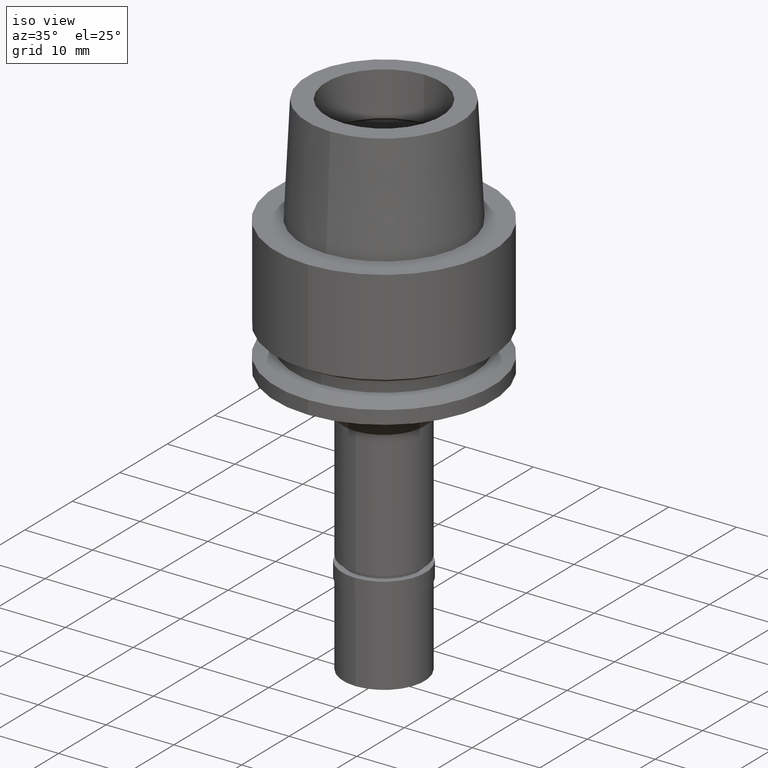
[diagram: clean part render]
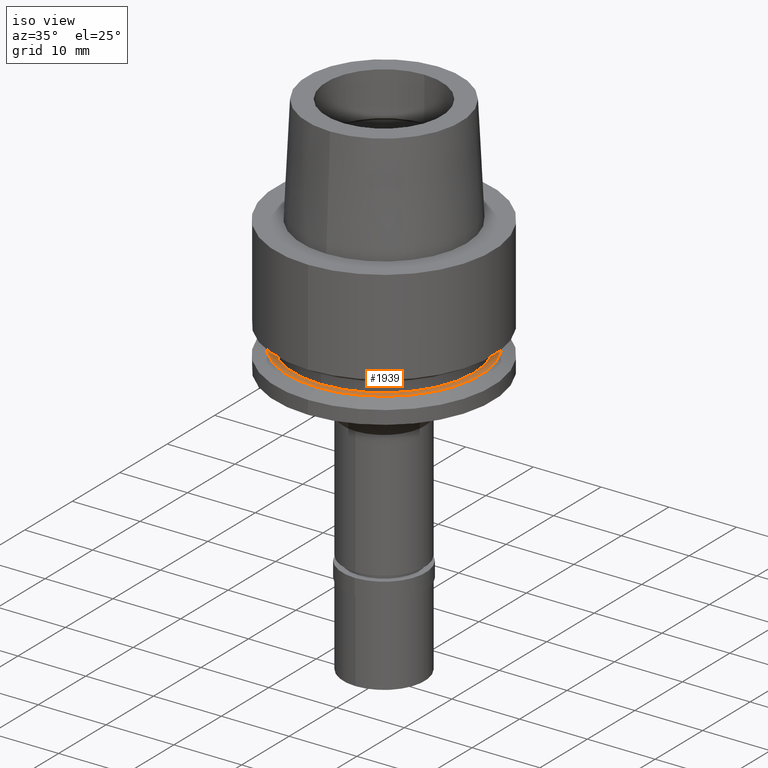
[diagram: same view with one face highlighted and labeled with its STEP entity id]
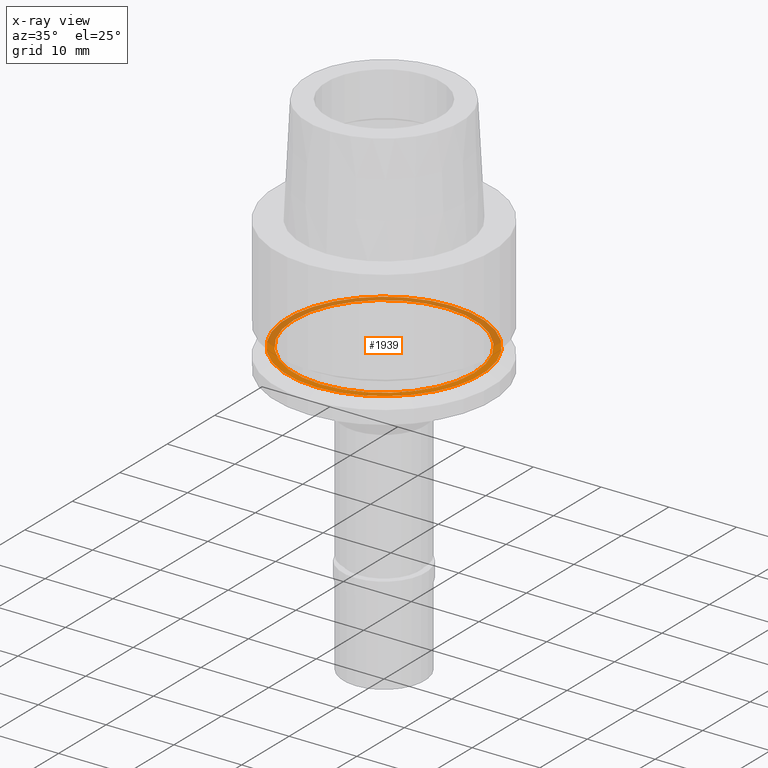
[diagram: x-ray of the same camera — body ghosted, the highlighted face saturated]
A machine part, iso view. The second image highlights one B-rep face of the part: STEP entity #1939.
The next image is the same camera in x-ray: the body ghosted, the highlighted face saturated — about 49% of this face is hidden behind the body in this view.
In plain terms, the highlighted planar face has unit normal (0, 0, 1).
Its self-contained STEP definition (entity closure, byte-faithful):
#44 = CARTESIAN_POINT ( 'NONE',  ( 0.0000000000000000000, 14.23205080756999941, -17.00000000000000000 ) ) ;
#167 = DIRECTION ( 'NONE',  ( 0.0000000000000000000, 0.0000000000000000000, -1.000000000000000000 ) ) ;
#178 = DIRECTION ( 'NONE',  ( 0.0000000000000000000, -1.000000000000000000, 0.0000000000000000000 ) ) ;
#190 = DIRECTION ( 'NONE',  ( 1.000000000000000000, 0.0000000000000000000, 0.0000000000000000000 ) ) ;
#236 = AXIS2_PLACEMENT_3D ( 'NONE', #1229, #1875, #1216 ) ;
#303 = CARTESIAN_POINT ( 'NONE',  ( 0.0000000000000000000, 0.0000000000000000000, -17.00000000000000000 ) ) ;
#342 = VERTEX_POINT ( 'NONE', #2623 ) ;
#381 = DIRECTION ( 'NONE',  ( 0.0000000000000000000, 1.000000000000000000, 0.0000000000000000000 ) ) ;
#404 = AXIS2_PLACEMENT_3D ( 'NONE', #2228, #1005, #190 ) ;
#601 = FACE_BOUND ( 'NONE', #1091, .T. ) ;
#721 = ORIENTED_EDGE ( 'NONE', *, *, #1552, .F. ) ;
#779 = CARTESIAN_POINT ( 'NONE',  ( 0.0000000000000000000, 13.25000000000000000, -17.00000000000000000 ) ) ;
#937 = AXIS2_PLACEMENT_3D ( 'NONE', #2238, #1202, #178 ) ;
#1001 = EDGE_CURVE ( 'NONE', #2002, #2274, #2255, .T. ) ;
#1005 = DIRECTION ( 'NONE',  ( 0.0000000000000000000, 0.0000000000000000000, 1.000000000000000000 ) ) ;
#1020 = CIRCLE ( 'NONE', #937, 13.25000000000000000 ) ;
#1091 = EDGE_LOOP ( 'NONE', ( #721, #2108 ) ) ;
#1191 = CIRCLE ( 'NONE', #2282, 14.23205080756999941 ) ;
#1202 = DIRECTION ( 'NONE',  ( 0.0000000000000000000, 0.0000000000000000000, 1.000000000000000000 ) ) ;
#1216 = DIRECTION ( 'NONE',  ( 0.0000000000000000000, 1.000000000000000000, 0.0000000000000000000 ) ) ;
#1229 = CARTESIAN_POINT ( 'NONE',  ( 0.0000000000000000000, 0.0000000000000000000, -17.00000000000000000 ) ) ;
#1232 = CIRCLE ( 'NONE', #236, 13.25000000000000000 ) ;
#1348 = AXIS2_PLACEMENT_3D ( 'NONE', #303, #1372, #1984 ) ;
#1372 = DIRECTION ( 'NONE',  ( 0.0000000000000000000, 0.0000000000000000000, -1.000000000000000000 ) ) ;
#1443 = CARTESIAN_POINT ( 'NONE',  ( 0.0000000000000000000, -14.23205080756999941, -17.00000000000000000 ) ) ;
#1552 = EDGE_CURVE ( 'NONE', #1677, #342, #1232, .T. ) ;
#1612 = PLANE ( 'NONE',  #404 ) ;
#1677 = VERTEX_POINT ( 'NONE', #779 ) ;
#1875 = DIRECTION ( 'NONE',  ( 0.0000000000000000000, 0.0000000000000000000, 1.000000000000000000 ) ) ;
#1939 = ADVANCED_FACE ( 'NONE', ( #2640, #601 ), #1612, .T. ) ;
#1945 = EDGE_LOOP ( 'NONE', ( #2176, #2501 ) ) ;
#1984 = DIRECTION ( 'NONE',  ( 0.0000000000000000000, -1.000000000000000000, 0.0000000000000000000 ) ) ;
#2002 = VERTEX_POINT ( 'NONE', #1443 ) ;
#2048 = EDGE_CURVE ( 'NONE', #342, #1677, #1020, .T. ) ;
#2070 = CARTESIAN_POINT ( 'NONE',  ( 0.0000000000000000000, 0.0000000000000000000, -17.00000000000000000 ) ) ;
#2101 = EDGE_CURVE ( 'NONE', #2274, #2002, #1191, .T. ) ;
#2108 = ORIENTED_EDGE ( 'NONE', *, *, #2048, .F. ) ;
#2176 = ORIENTED_EDGE ( 'NONE', *, *, #2101, .F. ) ;
#2228 = CARTESIAN_POINT ( 'NONE',  ( 0.0000000000000000000, 0.0000000000000000000, -17.00000000000000000 ) ) ;
#2238 = CARTESIAN_POINT ( 'NONE',  ( 0.0000000000000000000, 0.0000000000000000000, -17.00000000000000000 ) ) ;
#2255 = CIRCLE ( 'NONE', #1348, 14.23205080756999941 ) ;
#2274 = VERTEX_POINT ( 'NONE', #44 ) ;
#2282 = AXIS2_PLACEMENT_3D ( 'NONE', #2070, #167, #381 ) ;
#2501 = ORIENTED_EDGE ( 'NONE', *, *, #1001, .F. ) ;
#2623 = CARTESIAN_POINT ( 'NONE',  ( 0.0000000000000000000, -13.25000000000000000, -17.00000000000000000 ) ) ;
#2640 = FACE_OUTER_BOUND ( 'NONE', #1945, .T. ) ;